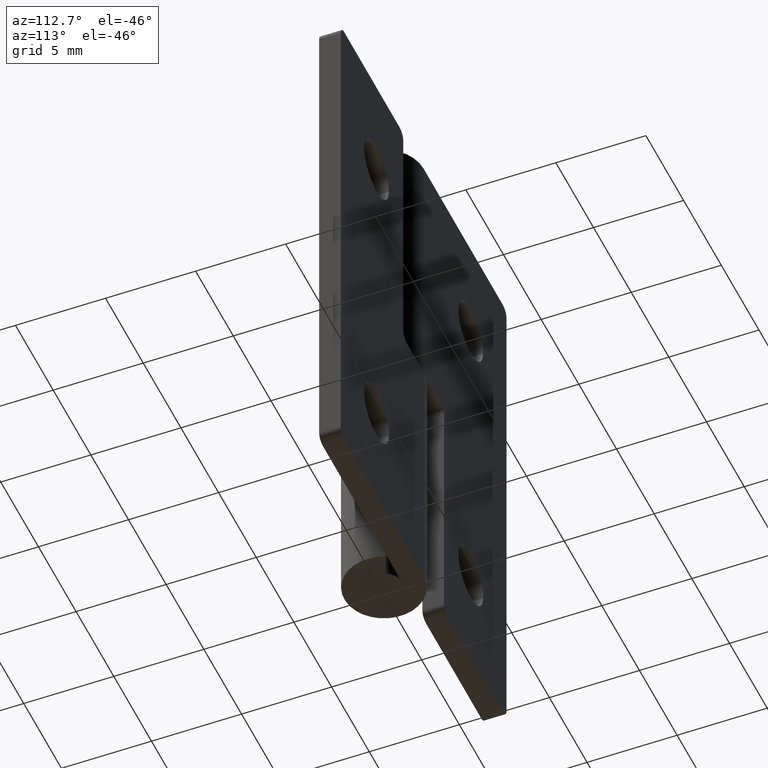
[diagram: clean part render]
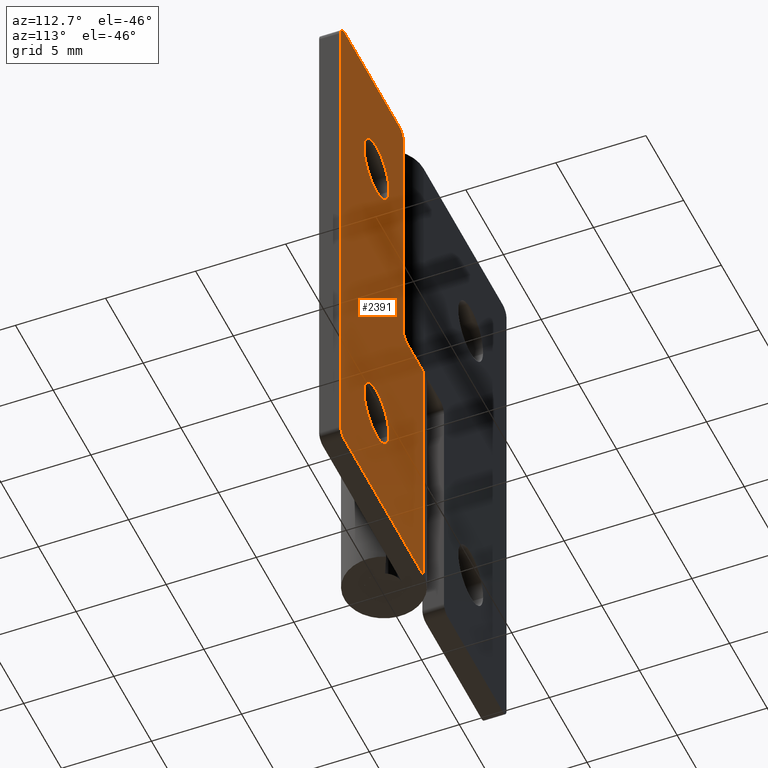
[diagram: same view with one face highlighted and labeled with its STEP entity id]
A machine part, auxiliary view. The second image highlights one B-rep face of the part: STEP entity #2391.
In plain terms, the highlighted face is a freeform B-spline surface patch.
Its self-contained STEP definition (entity closure, byte-faithful):
#1474=CARTESIAN_POINT('',(7.888466044865377,2.200000999999871,24.194753741467419));
#1475=VERTEX_POINT('',#1474);
#1476=CARTESIAN_POINT('',(6.250000000000000,2.200001000000000,22.350000000000001));
#1477=VERTEX_POINT('',#1476);
#1478=CARTESIAN_POINT('',(7.888466044865377,2.200000999999871,24.194753741467423));
#1479=CARTESIAN_POINT('',(7.900000000000000,2.200001000000000,24.097718410054195));
#1480=CARTESIAN_POINT('',(7.900000000000000,2.200001000000000,24.0));
#1481=CARTESIAN_POINT('',(7.900000000000000,2.200001000000000,22.350000000000001));
#1482=CARTESIAN_POINT('',(6.250000000000000,2.200001000000000,22.350000000000001));
#1490=(BOUNDED_CURVE()B_SPLINE_CURVE(2,(#1478,#1479,#1480,#1481,#1482),.UNSPECIFIED.,.F.,.U.)B_SPLINE_CURVE_WITH_KNOTS((3,2,3),(0.229562756728777,0.250000000000000,0.500000000000000),.UNSPECIFIED.)CURVE()GEOMETRIC_REPRESENTATION_ITEM()RATIONAL_B_SPLINE_CURVE((0.956027309297968,0.976056280138472,1.0,0.707106781186548,1.0))REPRESENTATION_ITEM(''));
#1491=EDGE_CURVE('',#1475,#1477,#1490,.T.);
#1493=CARTESIAN_POINT('',(4.603077582607618,2.200001000000000,23.899269909707009));
#1494=VERTEX_POINT('',#1493);
#1495=CARTESIAN_POINT('',(6.250000000000000,2.200001000000000,22.350000000000001));
#1496=CARTESIAN_POINT('',(4.697834989719819,2.200001000000000,22.350000000000001));
#1497=CARTESIAN_POINT('',(4.603077582607618,2.200001000000000,23.899269909707009));
#1505=(BOUNDED_CURVE()B_SPLINE_CURVE(2,(#1495,#1496,#1497),.UNSPECIFIED.,.F.,.U.)B_SPLINE_CURVE_WITH_KNOTS((3,3),(0.500000000000000,0.739332962229295),.UNSPECIFIED.)CURVE()GEOMETRIC_REPRESENTATION_ITEM()RATIONAL_B_SPLINE_CURVE((1.0,0.719603993298013,0.976072041646040))REPRESENTATION_ITEM(''));
#1506=EDGE_CURVE('',#1477,#1494,#1505,.T.);
#1577=CARTESIAN_POINT('',(6.250000000000000,2.200001000000000,25.649999999999999));
#1578=VERTEX_POINT('',#1577);
#1579=CARTESIAN_POINT('',(6.250000000000000,2.200001000000000,25.649999999999999));
#1580=CARTESIAN_POINT('',(7.715490440952178,2.200001000000001,25.650000000000006));
#1581=CARTESIAN_POINT('',(7.888466044865377,2.200000999999872,24.194753741467419));
#1589=(BOUNDED_CURVE()B_SPLINE_CURVE(2,(#1579,#1580,#1581),.UNSPECIFIED.,.F.,.U.)B_SPLINE_CURVE_WITH_KNOTS((3,3),(0.0,0.229562756728777),.UNSPECIFIED.)CURVE()GEOMETRIC_REPRESENTATION_ITEM()RATIONAL_B_SPLINE_CURVE((1.0,0.731050501048076,0.956027309297968))REPRESENTATION_ITEM(''));
#1590=EDGE_CURVE('',#1578,#1475,#1589,.T.);
#1624=CARTESIAN_POINT('',(4.603077582607618,2.200001000000001,23.899269909707009));
#1625=CARTESIAN_POINT('',(4.600000000000000,2.200001000000000,23.949587940496684));
#1626=CARTESIAN_POINT('',(4.600000000000000,2.200001000000000,24.0));
#1627=CARTESIAN_POINT('',(4.599999999999999,2.200001000000000,25.650000000000006));
#1628=CARTESIAN_POINT('',(6.250000000000000,2.200001000000000,25.649999999999999));
#1636=(BOUNDED_CURVE()B_SPLINE_CURVE(2,(#1624,#1625,#1626,#1627,#1628),.UNSPECIFIED.,.F.,.U.)B_SPLINE_CURVE_WITH_KNOTS((3,2,3),(0.739332962229296,0.750000000000000,1.0),.UNSPECIFIED.)CURVE()GEOMETRIC_REPRESENTATION_ITEM()RATIONAL_B_SPLINE_CURVE((0.976072041646042,0.987502787888535,1.0,0.707106781186548,1.0))REPRESENTATION_ITEM(''));
#1637=EDGE_CURVE('',#1494,#1578,#1636,.T.);
#1664=CARTESIAN_POINT('',(7.888466044865377,2.200000999999872,6.194753741467430));
#1665=VERTEX_POINT('',#1664);
#1666=CARTESIAN_POINT('',(6.250000000000000,2.200001000000000,4.350000000000000));
#1667=VERTEX_POINT('',#1666);
#1668=CARTESIAN_POINT('',(7.888466044865377,2.200000999999872,6.194753741467430));
#1669=CARTESIAN_POINT('',(7.900000000000000,2.200001000000000,6.097718410054206));
#1670=CARTESIAN_POINT('',(7.900000000000000,2.200001000000000,6.0));
#1671=CARTESIAN_POINT('',(7.900000000000000,2.200001000000000,4.350000000000000));
#1672=CARTESIAN_POINT('',(6.250000000000000,2.200001000000000,4.350000000000000));
#1680=(BOUNDED_CURVE()B_SPLINE_CURVE(2,(#1668,#1669,#1670,#1671,#1672),.UNSPECIFIED.,.F.,.U.)B_SPLINE_CURVE_WITH_KNOTS((3,2,3),(0.229562756728776,0.250000000000000,0.500000000000000),.UNSPECIFIED.)CURVE()GEOMETRIC_REPRESENTATION_ITEM()RATIONAL_B_SPLINE_CURVE((0.956027309297966,0.976056280138471,1.0,0.707106781186548,1.0))REPRESENTATION_ITEM(''));
#1681=EDGE_CURVE('',#1665,#1667,#1680,.T.);
#1683=CARTESIAN_POINT('',(4.603077582607618,2.200001000000000,5.899269909707009));
#1684=VERTEX_POINT('',#1683);
#1685=CARTESIAN_POINT('',(6.250000000000000,2.200001000000000,4.350000000000000));
#1686=CARTESIAN_POINT('',(4.697834989719819,2.200001000000000,4.350000000000001));
#1687=CARTESIAN_POINT('',(4.603077582607618,2.200001000000000,5.899269909707009));
#1695=(BOUNDED_CURVE()B_SPLINE_CURVE(2,(#1685,#1686,#1687),.UNSPECIFIED.,.F.,.U.)B_SPLINE_CURVE_WITH_KNOTS((3,3),(0.500000000000000,0.739332962229295),.UNSPECIFIED.)CURVE()GEOMETRIC_REPRESENTATION_ITEM()RATIONAL_B_SPLINE_CURVE((1.0,0.719603993298013,0.976072041646040))REPRESENTATION_ITEM(''));
#1696=EDGE_CURVE('',#1667,#1684,#1695,.T.);
#1767=CARTESIAN_POINT('',(6.250000000000000,2.200001000000000,7.650000000000000));
#1768=VERTEX_POINT('',#1767);
#1769=CARTESIAN_POINT('',(6.250000000000000,2.200001000000000,7.650000000000000));
#1770=CARTESIAN_POINT('',(7.715490440952169,2.200001000000000,7.650000000000001));
#1771=CARTESIAN_POINT('',(7.888466044865377,2.200000999999871,6.194753741467430));
#1779=(BOUNDED_CURVE()B_SPLINE_CURVE(2,(#1769,#1770,#1771),.UNSPECIFIED.,.F.,.U.)B_SPLINE_CURVE_WITH_KNOTS((3,3),(0.0,0.229562756728776),.UNSPECIFIED.)CURVE()GEOMETRIC_REPRESENTATION_ITEM()RATIONAL_B_SPLINE_CURVE((1.0,0.731050501048077,0.956027309297966))REPRESENTATION_ITEM(''));
#1780=EDGE_CURVE('',#1768,#1665,#1779,.T.);
#1814=CARTESIAN_POINT('',(4.603077582607618,2.200001000000000,5.899269909707009));
#1815=CARTESIAN_POINT('',(4.600000000000000,2.200000999999999,5.949587940496682));
#1816=CARTESIAN_POINT('',(4.600000000000000,2.200001000000000,6.0));
#1817=CARTESIAN_POINT('',(4.599999999999999,2.200001000000000,7.650000000000000));
#1818=CARTESIAN_POINT('',(6.250000000000000,2.200001000000000,7.650000000000000));
#1826=(BOUNDED_CURVE()B_SPLINE_CURVE(2,(#1814,#1815,#1816,#1817,#1818),.UNSPECIFIED.,.F.,.U.)B_SPLINE_CURVE_WITH_KNOTS((3,2,3),(0.739332962229296,0.750000000000000,1.0),.UNSPECIFIED.)CURVE()GEOMETRIC_REPRESENTATION_ITEM()RATIONAL_B_SPLINE_CURVE((0.976072041646042,0.987502787888535,1.0,0.707106781186548,1.0))REPRESENTATION_ITEM(''));
#1827=EDGE_CURVE('',#1684,#1768,#1826,.T.);
#1863=CARTESIAN_POINT('',(2.700004000000000,2.200000999999950,15.500000000000000));
#1864=VERTEX_POINT('',#1863);
#1870=CARTESIAN_POINT('',(2.200004000000000,2.200000999999950,15.0));
#1871=VERTEX_POINT('',#1870);
#1872=CARTESIAN_POINT('',(2.200004000000000,2.200000999999950,15.0));
#1873=CARTESIAN_POINT('',(2.700004000000001,2.200000999999951,14.999999999999995));
#1874=CARTESIAN_POINT('',(2.700004000000000,2.200000999999950,15.500000000000000));
#1882=(BOUNDED_CURVE()B_SPLINE_CURVE(2,(#1872,#1873,#1874),.UNSPECIFIED.,.F.,.U.)CURVE()GEOMETRIC_REPRESENTATION_ITEM()QUASI_UNIFORM_CURVE()RATIONAL_B_SPLINE_CURVE((1.0,0.707106781186548,1.0))REPRESENTATION_ITEM(''));
#1883=EDGE_CURVE('',#1871,#1864,#1882,.T.);
#1905=CARTESIAN_POINT('',(2.700004000000000,2.200001000000000,29.500000000000000));
#1906=VERTEX_POINT('',#1905);
#1912=CARTESIAN_POINT('',(2.700004000000000,2.200000999999950,15.500000000000000));
#1913=CARTESIAN_POINT('',(2.700004000000000,2.200001000000000,29.500000000000000));
#1914=QUASI_UNIFORM_CURVE('',1,(#1912,#1913),.UNSPECIFIED.,.F.,.U.);
#1915=EDGE_CURVE('',#1864,#1906,#1914,.T.);
#1928=CARTESIAN_POINT('',(0.0,2.200001000000000,15.0));
#1929=VERTEX_POINT('',#1928);
#1983=CARTESIAN_POINT('',(0.0,2.200001000000000,15.0));
#1984=CARTESIAN_POINT('',(2.200004000000000,2.200000999999950,15.0));
#1985=QUASI_UNIFORM_CURVE('',1,(#1983,#1984),.UNSPECIFIED.,.F.,.U.);
#1986=EDGE_CURVE('',#1929,#1871,#1985,.T.);
#2022=CARTESIAN_POINT('',(11.0,2.200000999999950,29.500000000000000));
#2023=VERTEX_POINT('',#2022);
#2029=CARTESIAN_POINT('',(10.500000000000000,2.200000999999950,30.0));
#2030=VERTEX_POINT('',#2029);
#2031=CARTESIAN_POINT('',(11.0,2.200000999999950,29.500000000000000));
#2032=CARTESIAN_POINT('',(11.000000000000002,2.200000999999951,30.000000000000004));
#2033=CARTESIAN_POINT('',(10.500000000000000,2.200000999999950,30.0));
#2041=(BOUNDED_CURVE()B_SPLINE_CURVE(2,(#2031,#2032,#2033),.UNSPECIFIED.,.F.,.U.)CURVE()GEOMETRIC_REPRESENTATION_ITEM()QUASI_UNIFORM_CURVE()RATIONAL_B_SPLINE_CURVE((1.0,0.707106781186548,1.0))REPRESENTATION_ITEM(''));
#2042=EDGE_CURVE('',#2023,#2030,#2041,.T.);
#2083=CARTESIAN_POINT('',(10.500000000000000,2.200000999999950,0.0));
#2084=VERTEX_POINT('',#2083);
#2090=CARTESIAN_POINT('',(11.0,2.200000999999950,0.500000000000014));
#2091=VERTEX_POINT('',#2090);
#2092=CARTESIAN_POINT('',(10.500000000000000,2.200000999999950,1.398621E-014));
#2093=CARTESIAN_POINT('',(11.000000000000002,2.200000999999951,1.398621E-014));
#2094=CARTESIAN_POINT('',(11.0,2.200000999999950,0.500000000000014));
#2102=(BOUNDED_CURVE()B_SPLINE_CURVE(2,(#2092,#2093,#2094),.UNSPECIFIED.,.F.,.U.)CURVE()GEOMETRIC_REPRESENTATION_ITEM()QUASI_UNIFORM_CURVE()RATIONAL_B_SPLINE_CURVE((1.0,0.707106781186548,1.0))REPRESENTATION_ITEM(''));
#2103=EDGE_CURVE('',#2084,#2091,#2102,.T.);
#2142=CARTESIAN_POINT('',(3.200004000000000,2.200000999999950,30.0));
#2143=VERTEX_POINT('',#2142);
#2149=CARTESIAN_POINT('',(3.200004000000000,2.200000999999950,30.0));
#2150=CARTESIAN_POINT('',(2.700004000000001,2.200000999999951,30.000000000000004));
#2151=CARTESIAN_POINT('',(2.700004000000000,2.200000999999950,29.500000000000000));
#2159=(BOUNDED_CURVE()B_SPLINE_CURVE(2,(#2149,#2150,#2151),.UNSPECIFIED.,.F.,.U.)CURVE()GEOMETRIC_REPRESENTATION_ITEM()QUASI_UNIFORM_CURVE()RATIONAL_B_SPLINE_CURVE((1.0,0.707106781186548,1.0))REPRESENTATION_ITEM(''));
#2160=EDGE_CURVE('',#2143,#1906,#2159,.T.);
#2207=CARTESIAN_POINT('',(0.0,2.200001000000000,0.0));
#2208=VERTEX_POINT('',#2207);
#2228=CARTESIAN_POINT('',(10.500000000000000,2.200000999999950,0.0));
#2229=CARTESIAN_POINT('',(0.0,2.200001000000000,0.0));
#2230=QUASI_UNIFORM_CURVE('',1,(#2228,#2229),.UNSPECIFIED.,.F.,.U.);
#2231=EDGE_CURVE('',#2084,#2208,#2230,.T.);
#2280=CARTESIAN_POINT('',(0.0,2.200001000000000,0.0));
#2281=CARTESIAN_POINT('',(0.0,2.200001000000000,15.0));
#2282=QUASI_UNIFORM_CURVE('',1,(#2280,#2281),.UNSPECIFIED.,.F.,.U.);
#2283=EDGE_CURVE('',#2208,#1929,#2282,.T.);
#2333=CARTESIAN_POINT('',(10.500000000000000,2.200000999999950,30.0));
#2334=CARTESIAN_POINT('',(3.200004000000000,2.200000999999950,30.0));
#2335=QUASI_UNIFORM_CURVE('',1,(#2333,#2334),.UNSPECIFIED.,.F.,.U.);
#2336=EDGE_CURVE('',#2030,#2143,#2335,.T.);
#2347=CARTESIAN_POINT('',(11.0,2.200000999999950,0.500000000000014));
#2348=CARTESIAN_POINT('',(11.0,2.200000999999950,29.500000000000000));
#2349=QUASI_UNIFORM_CURVE('',1,(#2347,#2348),.UNSPECIFIED.,.F.,.U.);
#2350=EDGE_CURVE('',#2091,#2023,#2349,.T.);
#2362=CARTESIAN_POINT('',(-0.549449978679866,2.200001000000000,-1.498499941854179));
#2363=CARTESIAN_POINT('',(-0.549449978679866,2.200001000000000,31.498500746516889));
#2364=CARTESIAN_POINT('',(11.549450273722860,2.200001000000000,-1.498499941854179));
#2365=CARTESIAN_POINT('',(11.549450273722860,2.200001000000000,31.498500746516889));
#2366=B_SPLINE_SURFACE_WITH_KNOTS('',1,1,((#2362,#2364),(#2363,#2365)),.UNSPECIFIED.,.F.,.F.,.U.,(2,2),(2,2),(0.0,32.997000688371067),(0.0,12.098900252402730),.UNSPECIFIED.);
#2367=ORIENTED_EDGE('',*,*,#1986,.T.);
#2368=ORIENTED_EDGE('',*,*,#1883,.T.);
#2369=ORIENTED_EDGE('',*,*,#1915,.T.);
#2370=ORIENTED_EDGE('',*,*,#2160,.F.);
#2371=ORIENTED_EDGE('',*,*,#2336,.F.);
#2372=ORIENTED_EDGE('',*,*,#2042,.F.);
#2373=ORIENTED_EDGE('',*,*,#2350,.F.);
#2374=ORIENTED_EDGE('',*,*,#2103,.F.);
#2375=ORIENTED_EDGE('',*,*,#2231,.T.);
#2376=ORIENTED_EDGE('',*,*,#2283,.T.);
#2377=EDGE_LOOP('',(#2367,#2368,#2369,#2370,#2371,#2372,#2373,#2374,#2375,#2376));
#2378=FACE_OUTER_BOUND('',#2377,.T.);
#2379=ORIENTED_EDGE('',*,*,#1696,.F.);
#2380=ORIENTED_EDGE('',*,*,#1681,.F.);
#2381=ORIENTED_EDGE('',*,*,#1780,.F.);
#2382=ORIENTED_EDGE('',*,*,#1827,.F.);
#2383=EDGE_LOOP('',(#2379,#2380,#2381,#2382));
#2384=FACE_BOUND('',#2383,.T.);
#2385=ORIENTED_EDGE('',*,*,#1506,.F.);
#2386=ORIENTED_EDGE('',*,*,#1491,.F.);
#2387=ORIENTED_EDGE('',*,*,#1590,.F.);
#2388=ORIENTED_EDGE('',*,*,#1637,.F.);
#2389=EDGE_LOOP('',(#2385,#2386,#2387,#2388));
#2390=FACE_BOUND('',#2389,.T.);
#2391=ADVANCED_FACE('',(#2378,#2384,#2390),#2366,.T.);